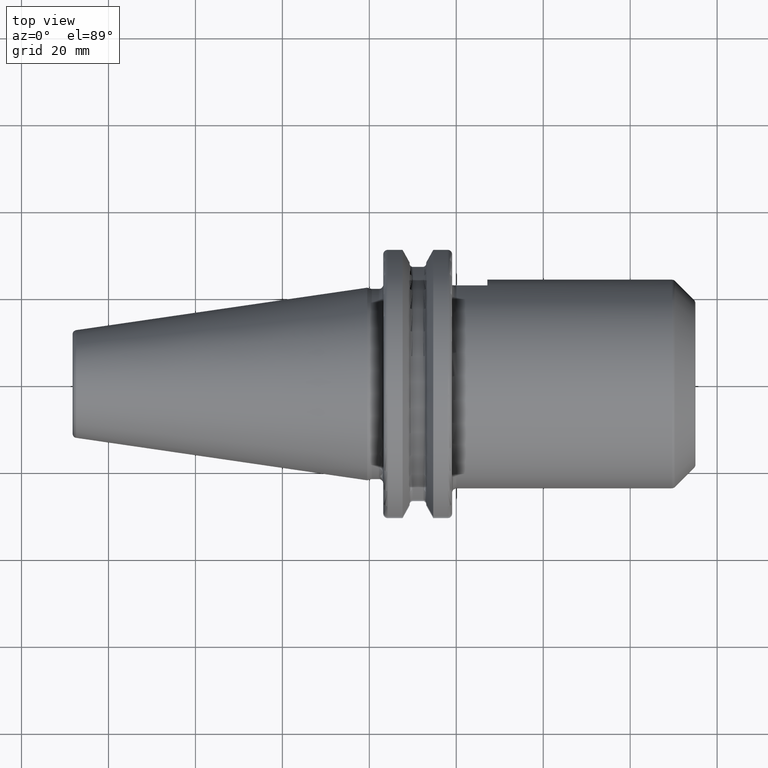
[diagram: clean part render]
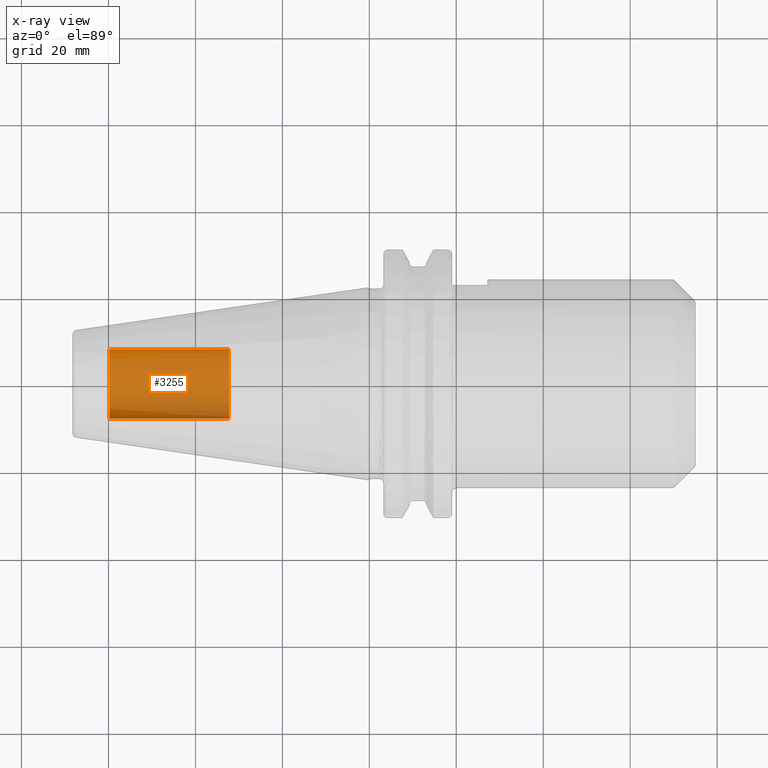
[diagram: x-ray — body ghosted, one internal face saturated and labeled with its STEP entity id]
A machine part, top view, then the same camera in x-ray: the body is ghosted and one INTERNAL B-rep face — a face not visible from any outside direction — is saturated and labeled: STEP entity #3255.
In plain terms, the highlighted cylindrical surface (edge-blend (fillet) strip) has radius 8.0028 mm, axis along (1, 0, 0).
Its self-contained STEP definition (entity closure, byte-faithful):
#3190=CARTESIAN_POINT('',(-5.98E1,0.E0,0.E0));
#3191=DIRECTION('',(-1.E0,0.E0,0.E0));
#3192=DIRECTION('',(0.E0,1.E0,0.E0));
#3193=AXIS2_PLACEMENT_3D('',#3190,#3191,#3192);
#3195=DIRECTION('',(1.E0,0.E0,0.E0));
#3196=VECTOR('',#3195,2.755E1);
#3197=CARTESIAN_POINT('',(-5.98E1,-8.00275E0,0.E0));
#3198=LINE('',#3197,#3196);
#3204=DIRECTION('',(1.E0,0.E0,0.E0));
#3205=VECTOR('',#3204,2.755E1);
#3206=CARTESIAN_POINT('',(-5.98E1,8.00275E0,0.E0));
#3207=LINE('',#3206,#3205);
#3213=CARTESIAN_POINT('',(-3.225E1,0.E0,0.E0));
#3214=DIRECTION('',(1.E0,0.E0,0.E0));
#3215=DIRECTION('',(0.E0,-1.E0,0.E0));
#3216=AXIS2_PLACEMENT_3D('',#3213,#3214,#3215);
#3228=CARTESIAN_POINT('',(-5.98E1,8.00275E0,0.E0));
#3229=CARTESIAN_POINT('',(-5.98E1,-8.00275E0,0.E0));
#3230=VERTEX_POINT('',#3228);
#3231=VERTEX_POINT('',#3229);
#3232=CARTESIAN_POINT('',(-3.225E1,8.00275E0,0.E0));
#3233=CARTESIAN_POINT('',(-3.225E1,-8.00275E0,0.E0));
#3234=VERTEX_POINT('',#3232);
#3235=VERTEX_POINT('',#3233);
#3240=CARTESIAN_POINT('',(-5.98E1,0.E0,0.E0));
#3241=DIRECTION('',(1.E0,0.E0,0.E0));
#3242=DIRECTION('',(0.E0,1.E0,0.E0));
#3243=AXIS2_PLACEMENT_3D('',#3240,#3241,#3242);
#3244=CYLINDRICAL_SURFACE('',#3243,8.00275E0);
#3246=ORIENTED_EDGE('',*,*,#3245,.T.);
#3248=ORIENTED_EDGE('',*,*,#3247,.T.);
#3250=ORIENTED_EDGE('',*,*,#3249,.T.);
#3252=ORIENTED_EDGE('',*,*,#3251,.F.);
#3253=EDGE_LOOP('',(#3246,#3248,#3250,#3252));
#3254=FACE_OUTER_BOUND('',#3253,.F.);
#3255=ADVANCED_FACE('',(#3254),#3244,.T.);
#3194=CIRCLE('',#3193,8.00275E0);
#3217=CIRCLE('',#3216,8.00275E0);
#3245=EDGE_CURVE('',#3230,#3231,#3194,.T.);
#3247=EDGE_CURVE('',#3231,#3235,#3198,.T.);
#3249=EDGE_CURVE('',#3235,#3234,#3217,.T.);
#3251=EDGE_CURVE('',#3230,#3234,#3207,.T.);